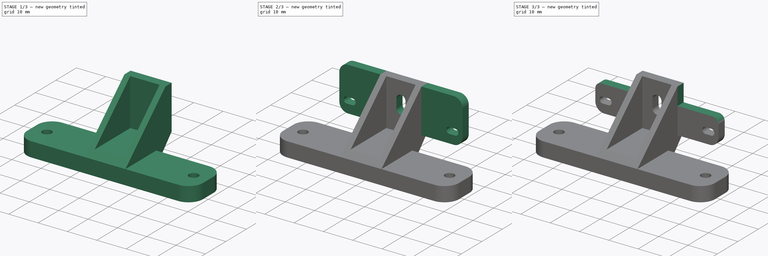
[diagram: build sequence overview — one tinted view per stage of 3, left to right]
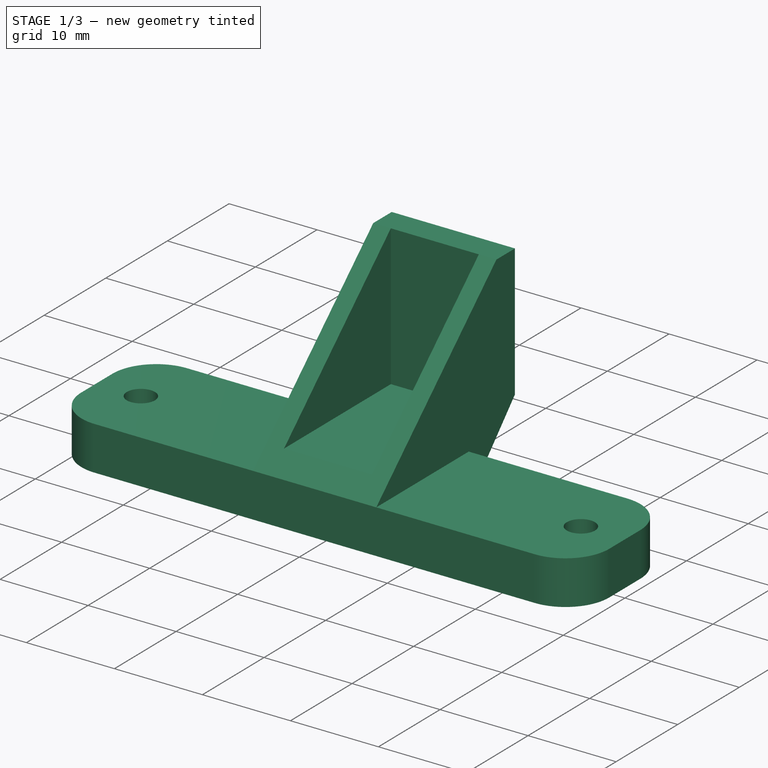
[diagram: stage 1 of 3 — iso view after this stage's code; geometry added in this stage tinted green]
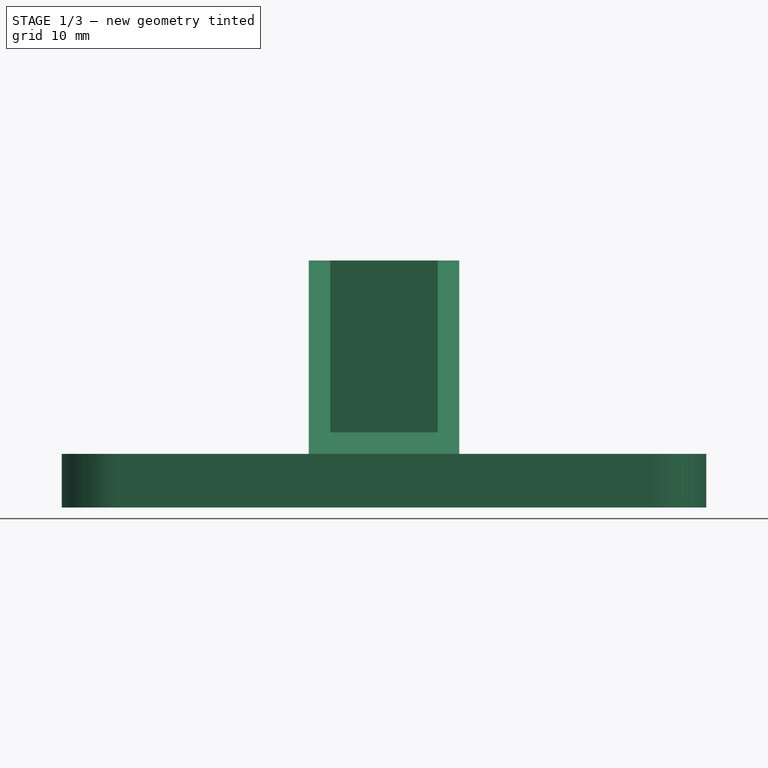
[diagram: stage 1 of 3 — front view after this stage's code; geometry added in this stage tinted green]
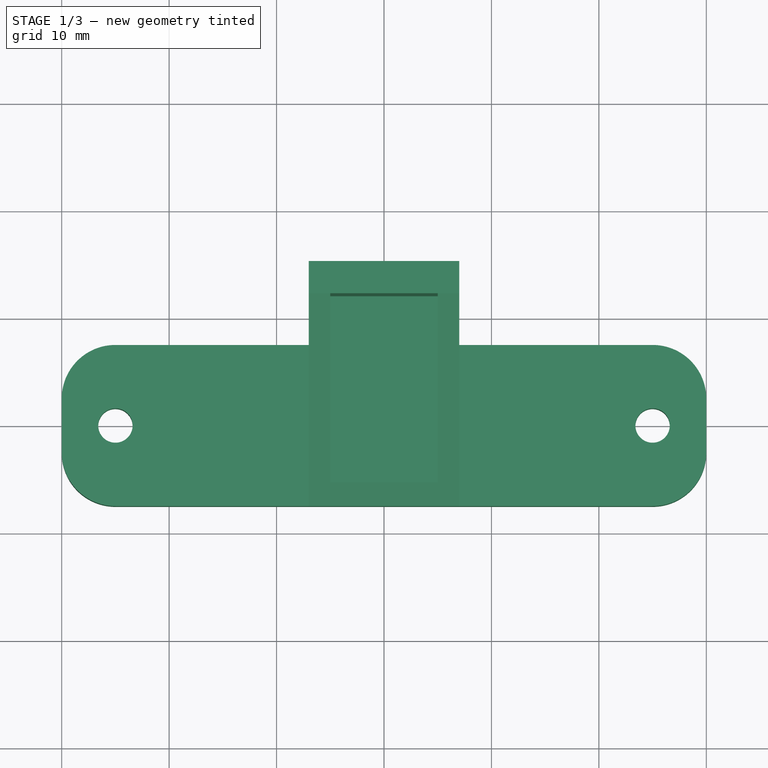
[diagram: stage 1 of 3 — top view after this stage's code; geometry added in this stage tinted green]
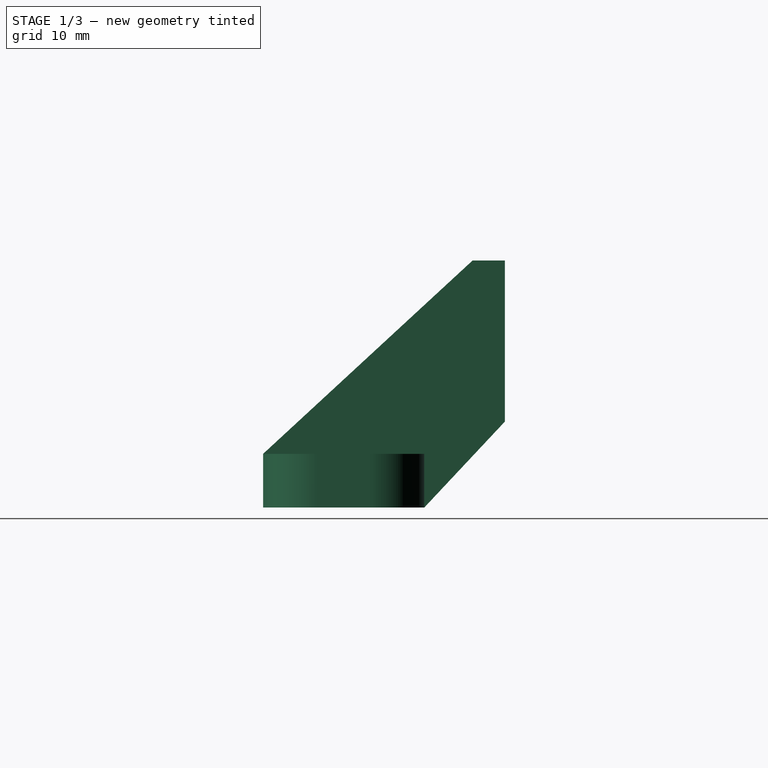
[diagram: stage 1 of 3 — right view after this stage's code; geometry added in this stage tinted green]
FCSTD DOCUMENT  (FreeCAD 0.18R16093 +53 (Git))
Label: rs_holder
License: All rights reserved
LicenseURL: http://en.wikipedia.org/wiki/All_rights_reserved
objects: Sketcher::SketchObject×6, PartDesign::Pad×3, PartDesign::Pocket×3, PartDesign::Fillet×2, PartDesign::Body×1
note: 21 computed .brp shape members not serialized (recipe doc carries the construction recipe); baked Part::Feature solids carry a one-line shape summary decoded from their .brp

FEATURE [Sketcher::SketchObject] Sketch
  MapMode = 5
  Support = -> [XY_Plane]
  sketch-geometry (10):
    g0: Circle CenterX=-25 CenterY=0 CenterZ=0 NormalX=0 NormalY=0 NormalZ=1 AngleXU=0 Radius=1.6
    g1: Circle CenterX=25 CenterY=0 CenterZ=0 NormalX=0 NormalY=0 NormalZ=1 AngleXU=0 Radius=1.6
    g2: LineSegment StartX=-25 StartY=7.5 StartZ=0 EndX=25 EndY=7.5 EndZ=0
    g3: LineSegment StartX=30 StartY=2.5 StartZ=0 EndX=30 EndY=-2.5 EndZ=0
    g4: LineSegment StartX=25 StartY=-7.5 StartZ=0 EndX=-25 EndY=-7.5 EndZ=0
    g5: LineSegment StartX=-30 StartY=-2.5 StartZ=0 EndX=-30 EndY=2.5 EndZ=0
    g6: ArcOfCircle CenterX=-25 CenterY=2.5 CenterZ=0 NormalX=0 NormalY=0 NormalZ=1 AngleXU=0 Radius=5 StartAngle=1.5708 EndAngle=3.14159
    g7: ArcOfCircle CenterX=25 CenterY=2.5 CenterZ=0 NormalX=0 NormalY=0 NormalZ=1 AngleXU=0 Radius=5 StartAngle=0 EndAngle=1.5708
    g8: ArcOfCircle CenterX=25 CenterY=-2.5 CenterZ=0 NormalX=0 NormalY=0 NormalZ=1 AngleXU=0 Radius=5 StartAngle=4.71239 EndAngle=6.28319
    g9: ArcOfCircle CenterX=-25 CenterY=-2.5 CenterZ=0 NormalX=0 NormalY=0 NormalZ=1 AngleXU=0 Radius=5 StartAngle=3.14159 EndAngle=4.71239
  constraints (23):
    c: Horizontal(g2)
    c: Horizontal(g4)
    c: Vertical(g3)
    c: Vertical(g5)
    c: Tangent(g2,g6) = 1.5708
    c: Tangent(g5,g6) = 1.5708
    c: Tangent(g2,g7) = 1.5708
    c: Tangent(g3,g7) = 1.5708
    c: Tangent(g3,g8) = 1.5708
    c: Tangent(g4,g8) = 1.5708
    c: Tangent(g4,g9) = 1.5708
    c: Tangent(g5,g9) = 1.5708
    c: Symmetric(g0,g1,g-1)
    c: Horizontal(g1,g0)
    c: Radius(g0) = 1.6
    c: Radius(g1) = 1.6
    c: DistanceX(g0,g1) = 50
    c: Symmetric(g3,g5,g-2)
    c: Symmetric(g2,g4,g-1)
    c: Radius(g6) = 5
    c: Radius(g9) = 5
    c: Distance(g5) = 5
    c: Distance(g2) = 50
FEATURE [PartDesign::Pad] Pad
  Length = 5
  Length2 = 100
  Profile = -> Sketch
  Type = 0
FEATURE [Sketcher::SketchObject] Sketch001
  ExternalGeometry = -> [Pad]
  Placement = pos=(0,0,0) rot=(0.57735,0.57735,0.57735;2.0944rad)
  sketch-geometry (6):
    g0: LineSegment StartX=-7.5 StartY=5 StartZ=0 EndX=7.5 EndY=5 EndZ=0
    g1: LineSegment StartX=15 StartY=8 StartZ=0 EndX=15 EndY=23 EndZ=0
    g2: LineSegment StartX=-7.5 StartY=5 StartZ=0 EndX=12 EndY=23 EndZ=0
    g3: LineSegment StartX=12 StartY=23 StartZ=0 EndX=15 EndY=23 EndZ=0
    g4: LineSegment StartX=7.5 StartY=5 StartZ=0 EndX=7.5 EndY=0 EndZ=0
    g5: LineSegment StartX=7.5 StartY=0 StartZ=0 EndX=15 EndY=8 EndZ=0
  constraints (17):
    c: Horizontal(g0)
    c: Coincident(g0,g2)
    c: Coincident(g2,g3)
    c: Coincident(g3,g1)
    c: Horizontal(g3)
    c: Distance(g0,g-1) = 5
    c: Distance(g3) = 3
    c: Distance(g1) = 15
    c: DistanceX(g-2,g1) = 15
    c: DistanceX(g-2,g0) = -7.5
    c: Coincident(g-3,g4)
    c: Coincident(g4,g-3)
    c: Coincident(g4,g5)
    c: Coincident(g5,g1)
    c: PointOnObject(g0,g4)
    c: DistanceY(g0,g1) = 3
    c: Vertical(g1)
FEATURE [PartDesign::Pad] Pad001
  BaseFeature = -> Pad
  Length = 14
  Length2 = 100
  Midplane = true
  Profile = -> Sketch001
  Type = 0
FEATURE [Sketcher::SketchObject] Sketch002
  ExternalGeometry = -> [Pad001]
  MapMode = 5
  Placement = pos=(0,-7.5,0) rot=(1,0,0;1.5708rad)
  sketch-geometry (4):
    g0: LineSegment StartX=-5 StartY=5 StartZ=0 EndX=5 EndY=5 EndZ=0
    g1: LineSegment StartX=5 StartY=5 StartZ=0 EndX=5 EndY=23 EndZ=0
    g2: LineSegment StartX=5 StartY=23 StartZ=0 EndX=-5 EndY=23 EndZ=0
    g3: LineSegment StartX=-5 StartY=23 StartZ=0 EndX=-5 EndY=5 EndZ=0
  constraints (12):
    c: Coincident(g0,g1)
    c: Coincident(g1,g2)
    c: Coincident(g3,g0)
    c: Horizontal(g0)
    c: Horizontal(g2)
    c: Vertical(g1)
    c: Vertical(g3)
    c: Distance(g2) = 10
    c: Distance(g3) = 18
    c: Coincident(g2,g3)
    c: PointOnObject(g2,g-7)
    c: Distance(g1,g-8) = 2
FEATURE [Sketcher::SketchObject] CopySketch002
  Placement = pos=(0,-7.5,0) rot=(1,0,0;1.5708rad)
  sketch-geometry (4):
    g0: LineSegment StartX=-5 StartY=7 StartZ=0 EndX=5 EndY=7 EndZ=0
    g1: LineSegment StartX=5 StartY=7 StartZ=0 EndX=5 EndY=25 EndZ=0
    g2: LineSegment StartX=5 StartY=25 StartZ=0 EndX=-5 EndY=25 EndZ=0
    g3: LineSegment StartX=-5 StartY=25 StartZ=0 EndX=-5 EndY=7 EndZ=0
  constraints (10):
    c: Coincident(g0,g1)
    c: Coincident(g1,g2)
    c: Coincident(g3,g0)
    c: Horizontal(g0)
    c: Horizontal(g2)
    c: Vertical(g1)
    c: Vertical(g3)
    c: Distance(g2) = 10
    c: Distance(g3) = 18
    c: Coincident(g3,g2)
FEATURE [PartDesign::Pocket] Pocket
  BaseFeature = -> Pad001
  Length = 19.5
  Length2 = 100
  Profile = -> CopySketch002
  Type = 0
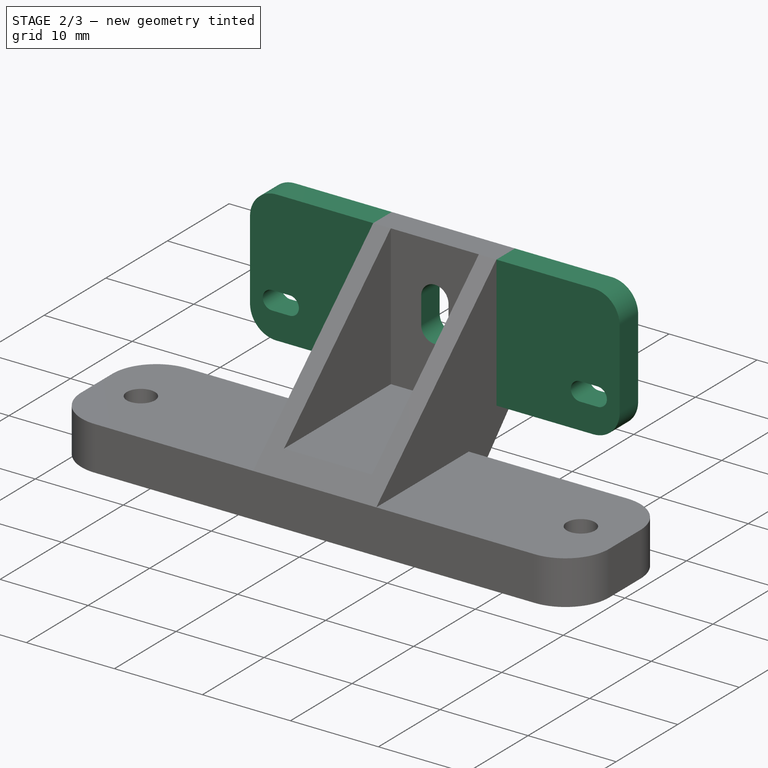
[diagram: stage 2 of 3 — iso view after this stage's code; geometry added in this stage tinted green]
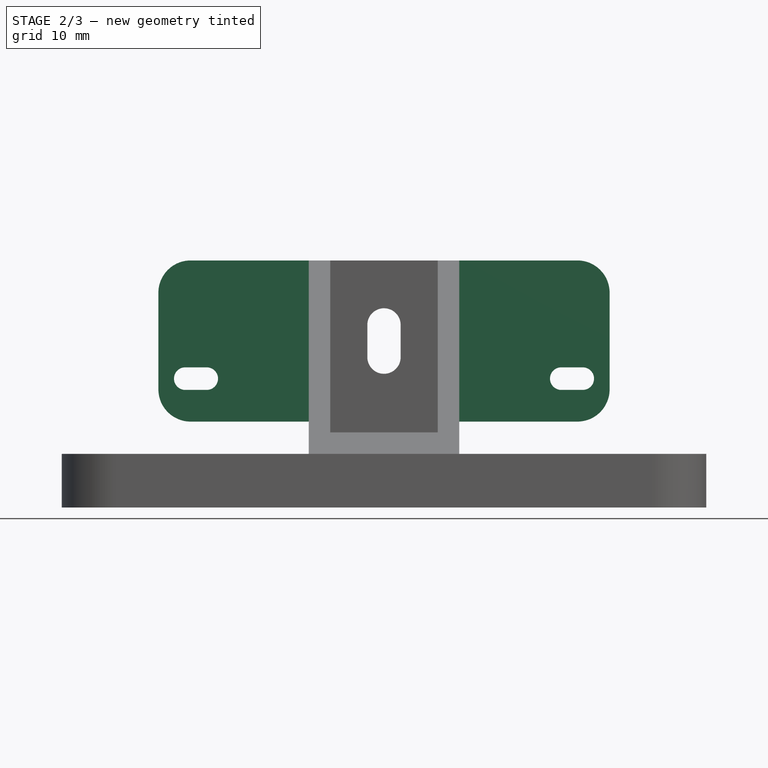
[diagram: stage 2 of 3 — front view after this stage's code; geometry added in this stage tinted green]
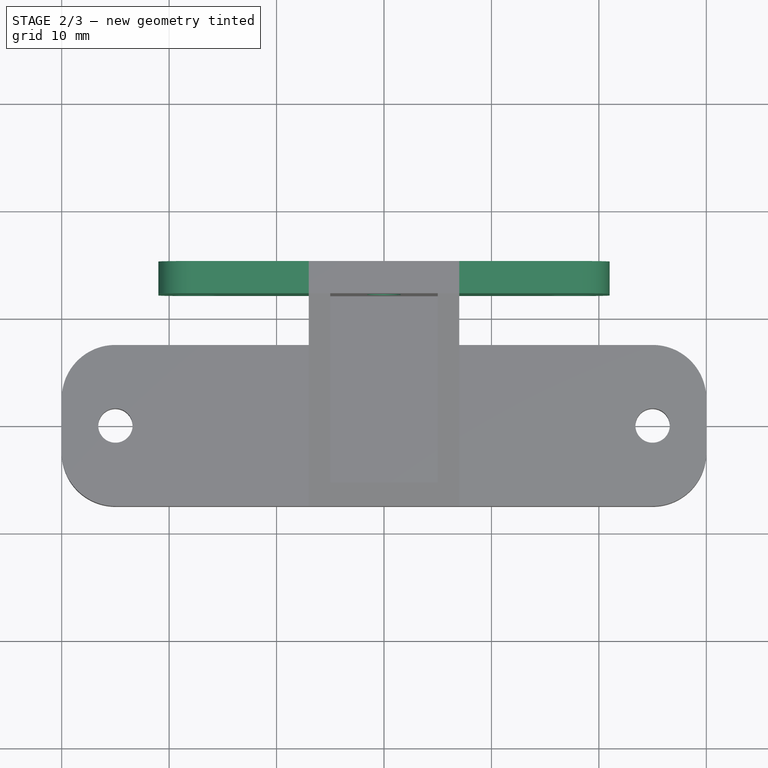
[diagram: stage 2 of 3 — top view after this stage's code; geometry added in this stage tinted green]
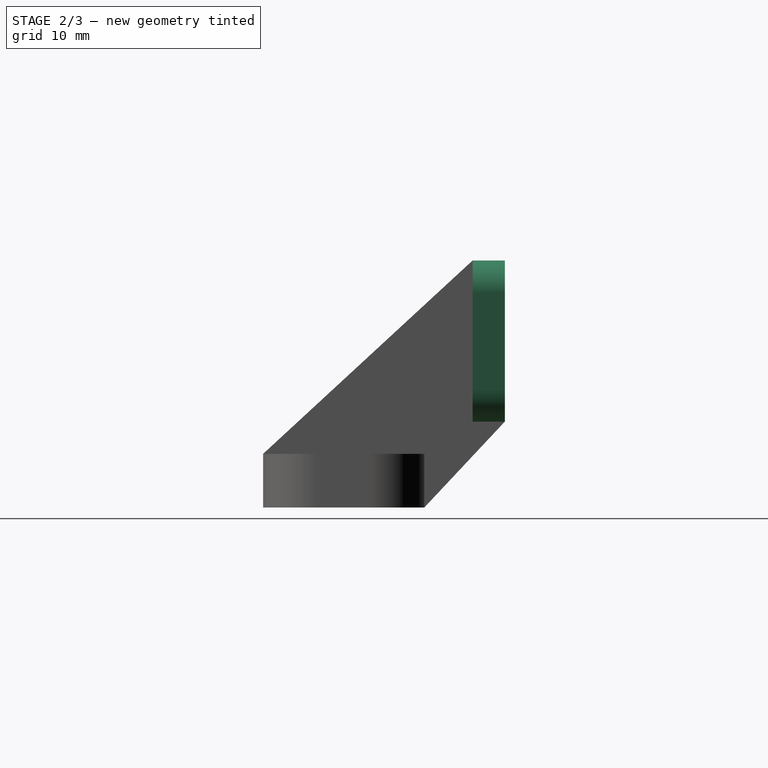
[diagram: stage 2 of 3 — right view after this stage's code; geometry added in this stage tinted green]
FEATURE [Sketcher::SketchObject] Sketch003
  ExternalGeometry = -> [Pocket]
  MapMode = 5
  Placement = pos=(0,15,0) rot=(0,0.707107,0.707107;3.14159rad)
  Support = -> [Pocket]
  sketch-geometry (23):
    g0: LineSegment StartX=-18 StartY=23 StartZ=0 EndX=18 EndY=23 EndZ=0
    g1: LineSegment StartX=21 StartY=20 StartZ=0 EndX=21 EndY=11 EndZ=0
    g2: LineSegment StartX=18 StartY=8 StartZ=0 EndX=-18 EndY=8 EndZ=0
    g3: LineSegment StartX=-21 StartY=11 StartZ=0 EndX=-21 EndY=20 EndZ=0
    g4: ArcOfCircle CenterX=-18 CenterY=20 CenterZ=0 NormalX=0 NormalY=0 NormalZ=1 AngleXU=0 Radius=3 StartAngle=1.5708 EndAngle=3.14159
    g5: ArcOfCircle CenterX=18 CenterY=20 CenterZ=0 NormalX=0 NormalY=0 NormalZ=1 AngleXU=0 Radius=3 StartAngle=-9e-16 EndAngle=1.5708
    g6: ArcOfCircle CenterX=-18 CenterY=11 CenterZ=0 NormalX=0 NormalY=0 NormalZ=1 AngleXU=0 Radius=3 StartAngle=3.14159 EndAngle=4.71239
    g7: ArcOfCircle CenterX=18 CenterY=11 CenterZ=0 NormalX=0 NormalY=0 NormalZ=1 AngleXU=0 Radius=3 StartAngle=4.71239 EndAngle=6.28319
    g8: GeomPoint X=0 Y=2 Z=0
    g9: LineSegment [constr] StartX=-21 StartY=2 StartZ=0 EndX=0 EndY=2 EndZ=0
    g10: LineSegment [constr] StartX=21 StartY=2 StartZ=0 EndX=0 EndY=2 EndZ=0
    g11: LineSegment StartX=-18.5 StartY=13.05 StartZ=0 EndX=-16.5 EndY=13.05 EndZ=0
    g12: LineSegment StartX=-18.5 StartY=10.95 StartZ=0 EndX=-16.5 EndY=10.95 EndZ=0
    g13: ArcOfCircle CenterX=-18.5 CenterY=12 CenterZ=0 NormalX=0 NormalY=0 NormalZ=1 AngleXU=0 Radius=1.05 StartAngle=1.5708 EndAngle=4.71239
    g14: ArcOfCircle CenterX=-16.5 CenterY=12 CenterZ=0 NormalX=0 NormalY=0 NormalZ=1 AngleXU=0 Radius=1.05 StartAngle=4.71239 EndAngle=7.85398
    g15: LineSegment StartX=16.5 StartY=13.05 StartZ=0 EndX=18.5 EndY=13.05 EndZ=0
    g16: LineSegment StartX=16.5 StartY=10.95 StartZ=0 EndX=18.5 EndY=10.95 EndZ=0
    g17: ArcOfCircle CenterX=16.5 CenterY=12 CenterZ=0 NormalX=0 NormalY=0 NormalZ=1 AngleXU=0 Radius=1.05 StartAngle=1.5708 EndAngle=4.71239
    g18: ArcOfCircle CenterX=18.5 CenterY=12 CenterZ=0 NormalX=0 NormalY=0 NormalZ=1 AngleXU=0 Radius=1.05 StartAngle=4.7124 EndAngle=7.85397
    g19: LineSegment StartX=-1.55 StartY=17 StartZ=0 EndX=-1.55 EndY=14 EndZ=0
    g20: LineSegment StartX=1.55 StartY=17 StartZ=0 EndX=1.55 EndY=14 EndZ=0
    g21: ArcOfCircle CenterX=0 CenterY=17 CenterZ=0 NormalX=0 NormalY=0 NormalZ=1 AngleXU=0 Radius=1.55 StartAngle=6.28319 EndAngle=9.42478
    g22: ArcOfCircle CenterX=0 CenterY=14 CenterZ=0 NormalX=0 NormalY=0 NormalZ=1 AngleXU=0 Radius=1.55 StartAngle=3.1416 EndAngle=6.28318
  constraints (67):
    c: Horizontal(g0)
    c: Horizontal(g2)
    c: Vertical(g1)
    c: Vertical(g3)
    c: PointOnObject(g-4,g2)
    c: PointOnObject(g-3,g0)
    c: Tangent(g0,g4) = 1.5708
    c: Tangent(g3,g4) = 1.5708
    c: Tangent(g0,g5) = 1.5708
    c: Tangent(g1,g5) = 1.5708
    c: Tangent(g2,g6) = 1.5708
    c: Tangent(g3,g6) = 1.5708
    c: Tangent(g1,g7) = 1.5708
    c: Tangent(g2,g7) = 1.5708
    c: Distance(g3,g1) = 42
    c: Equal(g4,g5)
    c: Equal(g6,g7)
    c: Radius(g6) = 3
    c: Radius(g4) = 3
    c: PointOnObject(g8,g-2)
    c: Coincident(g9,g8)
    c: Horizontal(g9)
    c: PointOnObject(g10,g1)
    c: Coincident(g10,g8)
    c: Horizontal(g10)
    c: Equal(g9,g10)
    c: Symmetric(g9,g3,g3)
    c: Horizontal(g11)
    c: Horizontal(g12)
    c: Coincident(g13,g12)
    c: Coincident(g14,g11)
    c: Coincident(g14,g12)
    c: Equal(g11,g12)
    c: Vertical(g11,g12)
    c: DistanceX(g11,g11) = 2
    c: Tangent(g11,g13) = 1.5708
    c: DistanceY(g12,g11) = 2.1
    c: Horizontal(g15)
    c: Horizontal(g16)
    c: Coincident(g17,g16)
    c: Coincident(g18,g15)
    c: Coincident(g18,g16)
    c: Equal(g18,g17)
    c: Vertical(g15,g16)
    c: Tangent(g15,g17) = 1.5708
    c: DistanceY(g16,g15) = 2.1
    c: Horizontal(g14,g17)
    c: Vertical(g19)
    c: Vertical(g20)
    c: Coincident(g21,g19)
    c: Coincident(g21,g20)
    c: Coincident(g22,g19)
    c: Coincident(g22,g20)
    c: Equal(g19,g20)
    c: Horizontal(g20,g19)
    c: Tangent(g21,g19)
    c: Diameter(g21) = 3.1
    c: PointOnObject(g22,g-2)
    c: DistanceY(g-4,g22) = 6
    c: DistanceY(g19,g19) = 3
    c: DistanceY(g2,g14) = 4
    c: Distance(g14,g-2) = 16.5
    c: Equal(g11,g15)
    c: Equal(g16,g15)
    c: DistanceX(g-2,g17) = 16.5
    c: Equal(g21,g22)
    c: Equal(g13,g14)
FEATURE [PartDesign::Pad] Pad002
  BaseFeature = -> Pocket
  Length = 3
  Length2 = 100
  Profile = -> Sketch003
  Reversed = true
  Type = 0
FEATURE [PartDesign::Pocket] Pocket001
  BaseFeature = -> Pad002
  Length = 5
  Length2 = 100
  Profile = -> Pad002 [Face28]
  Type = 0
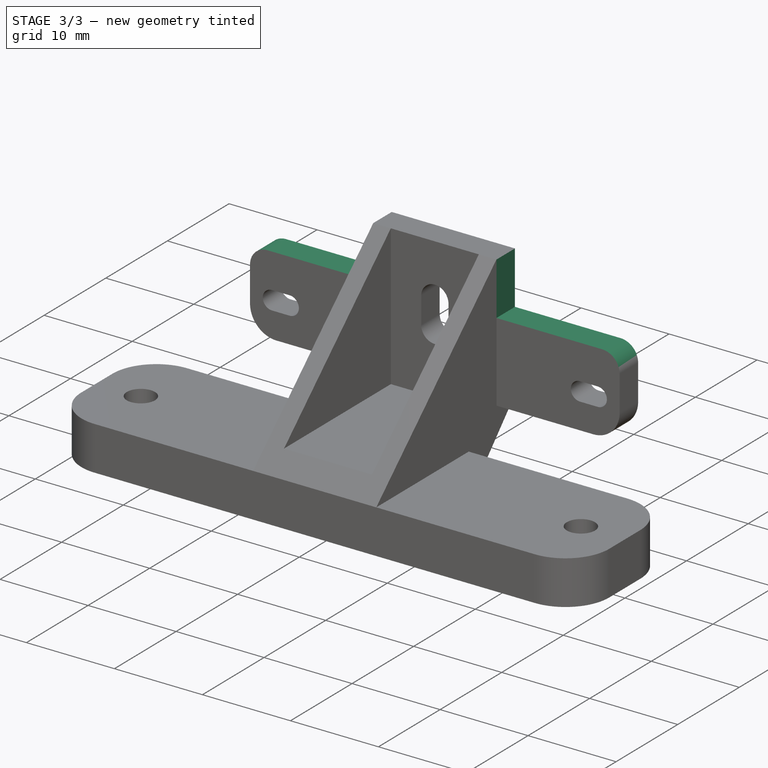
[diagram: stage 3 of 3 — iso view after this stage's code; geometry added in this stage tinted green]
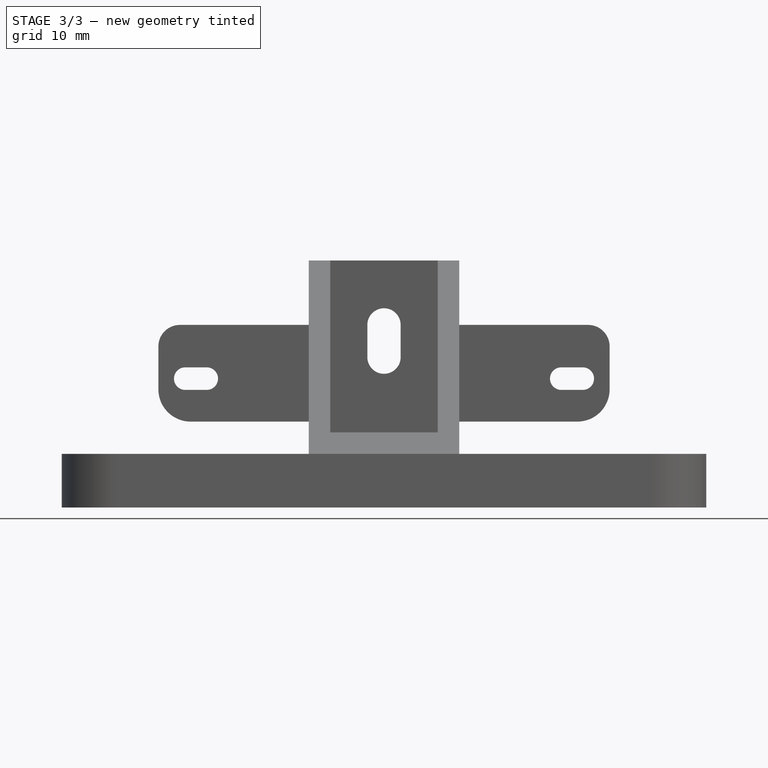
[diagram: stage 3 of 3 — front view after this stage's code; geometry added in this stage tinted green]
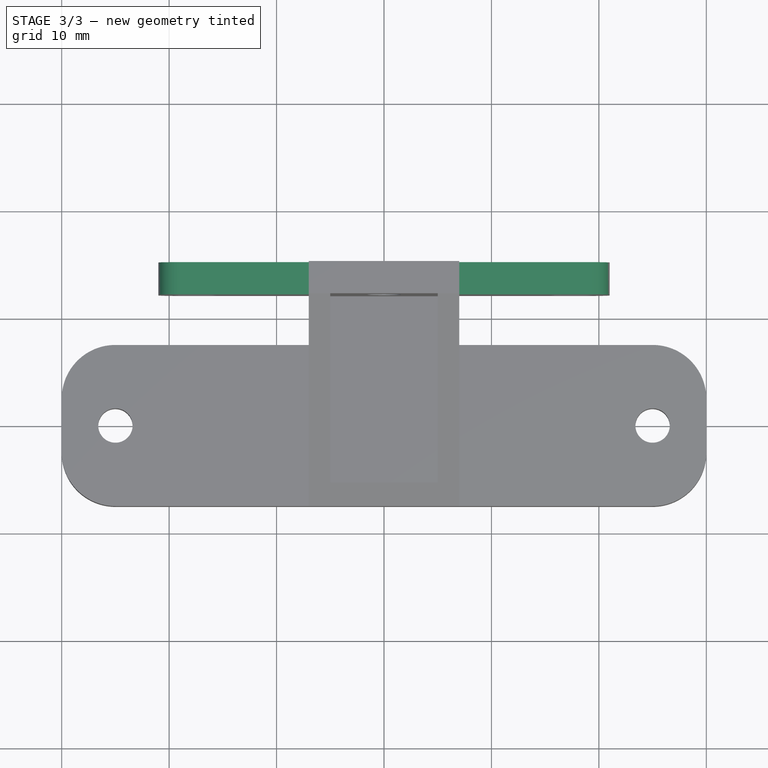
[diagram: stage 3 of 3 — top view after this stage's code; geometry added in this stage tinted green]
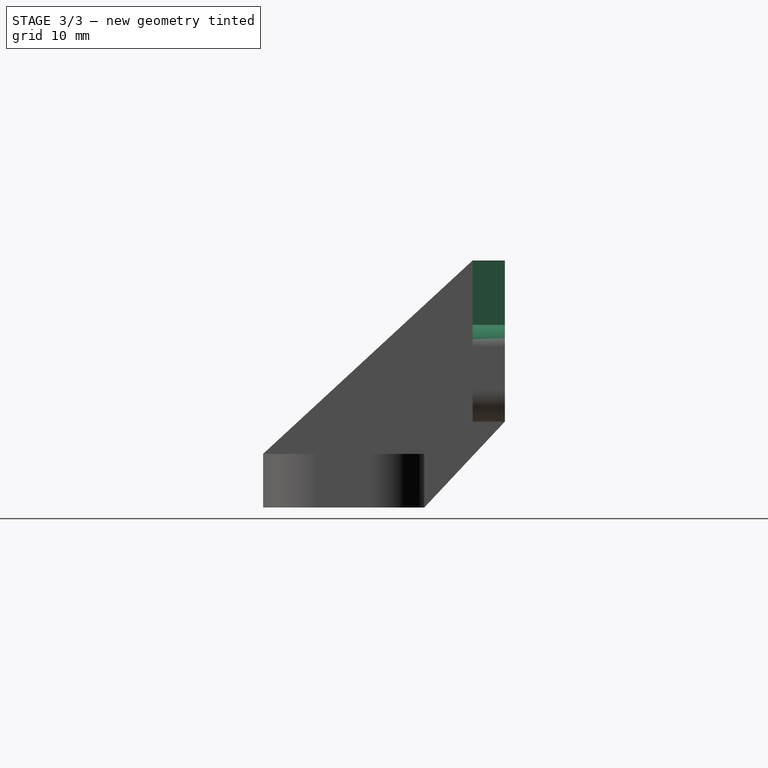
[diagram: stage 3 of 3 — right view after this stage's code; geometry added in this stage tinted green]
FEATURE [Sketcher::SketchObject] Sketch004
  ExternalGeometry = -> [Pad002]
  MapMode = 5
  Placement = pos=(0,15,0) rot=(0,0.707107,0.707107;3.14159rad)
  Support = -> [Pad002]
  sketch-geometry (8):
    g0: LineSegment StartX=-21 StartY=17 StartZ=0 EndX=-7 EndY=17 EndZ=0
    g1: LineSegment StartX=-7 StartY=17 StartZ=0 EndX=-7 EndY=23 EndZ=0
    g2: LineSegment StartX=7 StartY=23 StartZ=0 EndX=7 EndY=17 EndZ=0
    g3: LineSegment StartX=7 StartY=17 StartZ=0 EndX=21 EndY=17 EndZ=0
    g4: LineSegment StartX=21 StartY=17 StartZ=0 EndX=21 EndY=23 EndZ=0
    g5: LineSegment StartX=21 StartY=23 StartZ=0 EndX=7 EndY=23 EndZ=0
    g6: LineSegment StartX=-7 StartY=23 StartZ=0 EndX=-21 EndY=23 EndZ=0
    g7: LineSegment StartX=-21 StartY=23 StartZ=0 EndX=-21 EndY=17 EndZ=0
  constraints (22):
    c: Horizontal(g0)
    c: Coincident(g0,g1)
    c: Coincident(g1,g-7)
    c: Vertical(g2)
    c: Coincident(g2,g3)
    c: PointOnObject(g3,g-5)
    c: Horizontal(g3)
    c: PointOnObject(g0,g-3)
    c: PointOnObject(g0,g-8)
    c: Horizontal(g0,g2)
    c: Coincident(g3,g4)
    c: Vertical(g4)
    c: Coincident(g4,g5)
    c: Horizontal(g5)
    c: Coincident(g6,g1)
    c: Horizontal(g6)
    c: Coincident(g7,g6)
    c: Vertical(g7)
    c: Coincident(g7,g0)
    c: DistanceY(g0,g1) = 6
    c: Coincident(g2,g5)
    c: Coincident(g-9,g2)
FEATURE [PartDesign::Pocket] Pocket002
  BaseFeature = -> Pocket001
  Length = 5
  Length2 = 100
  Profile = -> Sketch004
  Type = 0
FEATURE [PartDesign::Fillet] Fillet
  Base = -> Pocket002 [Edge133]
  BaseFeature = -> Pocket002
  Radius = 2
FEATURE [PartDesign::Fillet] Fillet001
  Base = -> Fillet [Edge95]
  BaseFeature = -> Fillet
  Radius = 2
FEATURE [PartDesign::Body] Body
  Group = -> [Sketch,Pad,Pad001,Pocket,Sketch003,Pad002,Pocket001,Sketch004,Pocket002,Fillet,Fillet001]
  Origin = -> Origin
  Tip = -> Fillet001
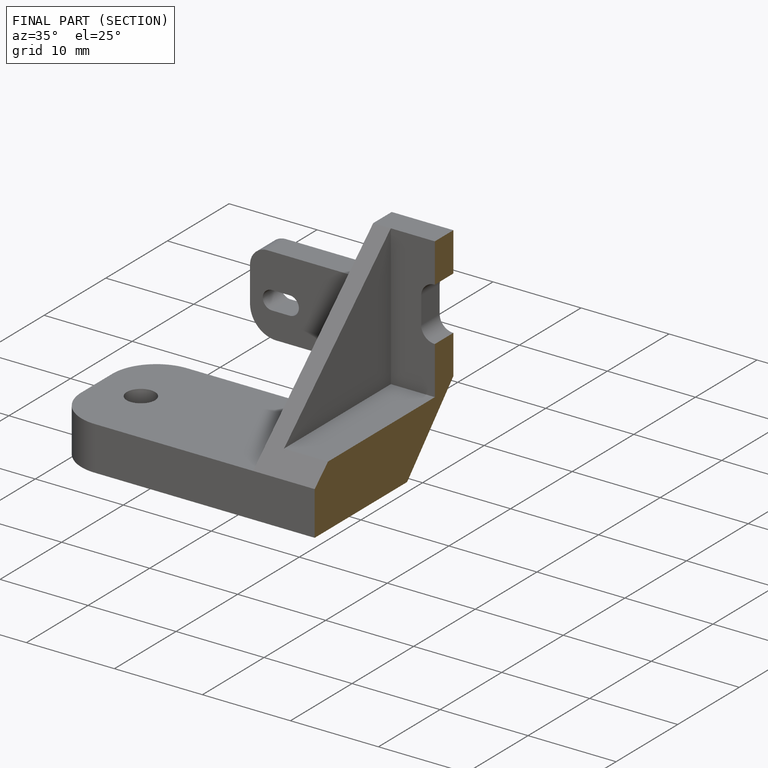
[diagram: finished part — half-section view (interior)]
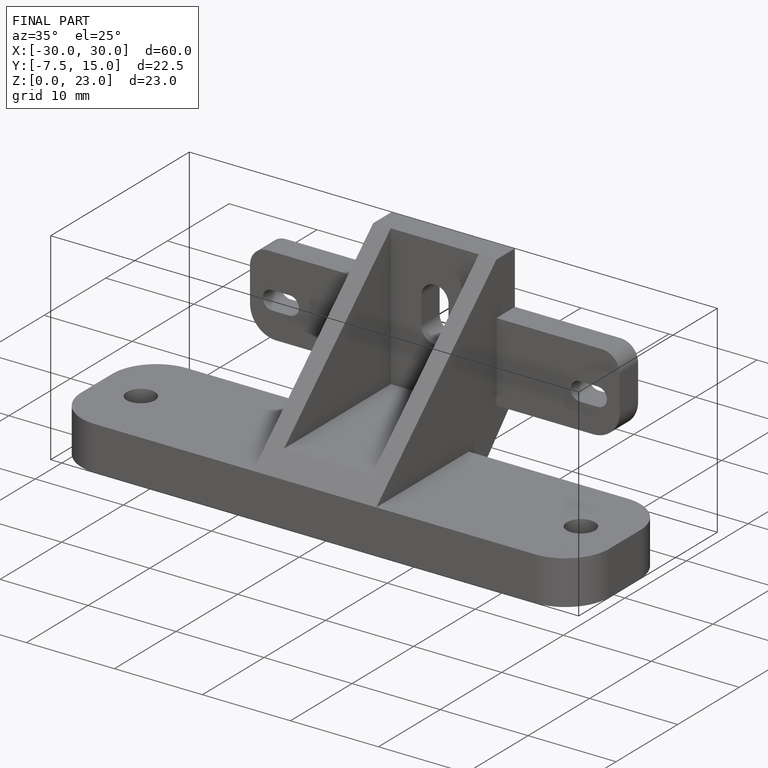
[diagram: finished part — iso view with bounding-box wireframe]
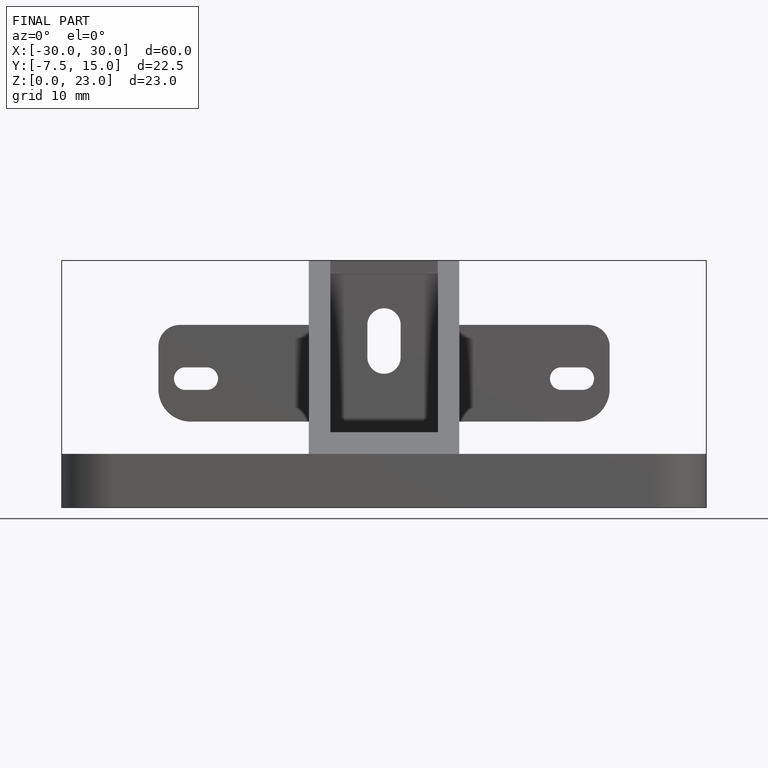
[diagram: finished part — front view with bounding-box wireframe]
